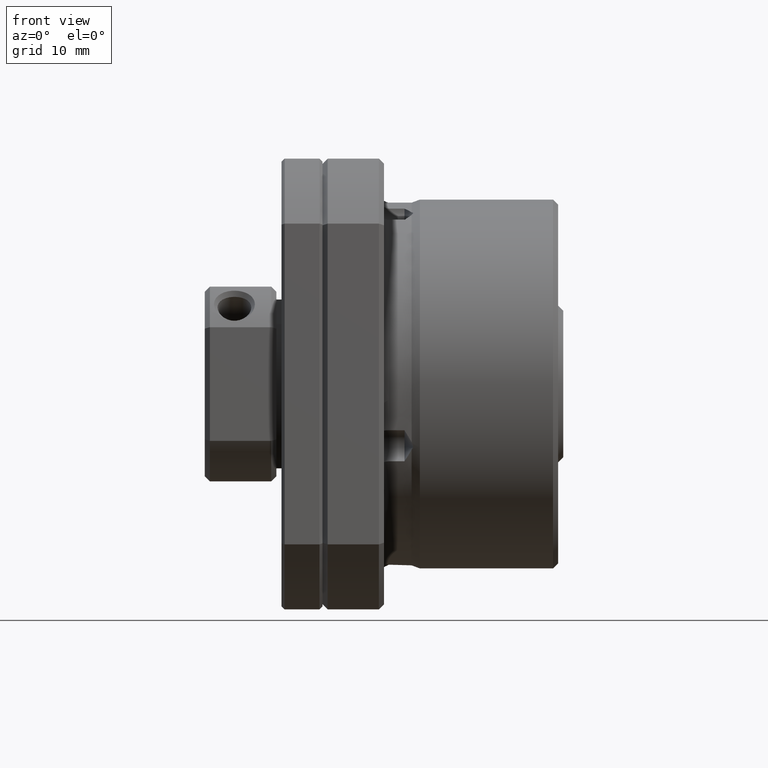
[diagram: clean part render]
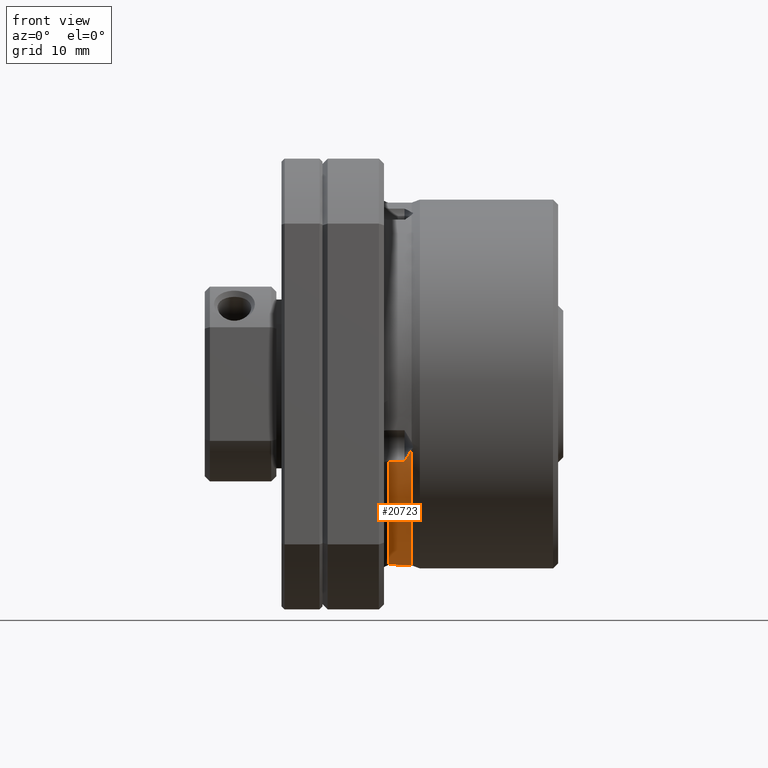
[diagram: same view with one face highlighted and labeled with its STEP entity id]
A machine part, front view. The second image highlights one B-rep face of the part: STEP entity #20723.
In plain terms, the highlighted cylindrical surface (partial cylindrical patch) has radius 17.7 mm, axis along (-1, -0, -0).
Its self-contained STEP definition (entity closure, byte-faithful):
#391 = VERTEX_POINT ( 'NONE', #14386 ) ;
#436 = EDGE_CURVE ( 'NONE', #391, #452, #14480, .T. ) ;
#452 = VERTEX_POINT ( 'NONE', #14495 ) ;
#8760 = CARTESIAN_POINT ( 'NONE',  ( 8.000000000000000000, -16.01412981139533200, -7.539074637100979400 ) ) ;
#8761 = CARTESIAN_POINT ( 'NONE',  ( 8.120802033788658400, -16.10057571867715600, -7.355450512455436600 ) ) ;
#8762 = CARTESIAN_POINT ( 'NONE',  ( 8.241234082147562000, -16.18393367971889800, -7.170216454660001100 ) ) ;
#8763 = CARTESIAN_POINT ( 'NONE',  ( 8.419074907213165200, -16.30478993042077500, -6.888704788558159800 ) ) ;
#8764 = CARTESIAN_POINT ( 'NONE',  ( 8.477912483337027200, -16.34438367873660500, -6.794245050410823200 ) ) ;
#8765 = CARTESIAN_POINT ( 'NONE',  ( 8.592737253384665800, -16.42247372935303000, -6.603256791273008900 ) ) ;
#8766 = CARTESIAN_POINT ( 'NONE',  ( 8.649190266654795100, -16.46089141186192600, -6.506953526237564800 ) ) ;
#8767 = CARTESIAN_POINT ( 'NONE',  ( 8.699999999999999300, -16.49952633265435500, -6.407466800385729600 ) ) ;
#8768 = CARTESIAN_POINT ( 'NONE',  ( 8.699999999999999300, -16.49952633265435500, -6.407466800385729600 ) ) ;
#8769 = B_SPLINE_CURVE_WITH_KNOTS ( 'NONE', 3,
 ( #8767, #8766, #8765, #8764, #8763, #8762, #8761, #8760 ),
 .UNSPECIFIED., .F., .F.,
 ( 4, 2, 2, 4 ),
 ( 4.647671282702426400E-007, 0.0003546252043864472900, 0.0007087856416446243400, 0.001417106516160984200 ),
 .UNSPECIFIED. ) ;
#8770 = CARTESIAN_POINT ( 'NONE',  ( 8.000000000000000000, -16.01412981139533200, -7.539074637100979400 ) ) ;
#8771 = LINE ( 'NONE', #8831, #8830 ) ;
#8772 = CARTESIAN_POINT ( 'NONE',  ( 6.500000000000005300, 4.518417990666042000, -17.11355891863598800 ) ) ;
#8795 = CARTESIAN_POINT ( 'NONE',  ( 8.000000000000000000, 4.518417990666038400, -17.11355891863599200 ) ) ;
#8829 = DIRECTION ( 'NONE',  ( 1.000000000000000000, 0.0000000000000000000, 0.0000000000000000000 ) ) ;
#8830 = VECTOR ( 'NONE', #8829, 1000.000000000000000 ) ;
#8831 = CARTESIAN_POINT ( 'NONE',  ( 3.999999999999999100, 4.518417990666042900, -17.11355891863599200 ) ) ;
#10359 = CARTESIAN_POINT ( 'NONE',  ( 8.699999999999999300, 5.697286755421897600, -16.75801072999102100 ) ) ;
#10360 = CARTESIAN_POINT ( 'NONE',  ( 8.649105457767538100, 5.596072794123046800, -16.79242083811559600 ) ) ;
#10361 = CARTESIAN_POINT ( 'NONE',  ( 8.592630876397089800, 5.497588769951598000, -16.82489697095796900 ) ) ;
#10362 = CARTESIAN_POINT ( 'NONE',  ( 8.477819138101395400, 5.301117562490500900, -16.88782972899429400 ) ) ;
#10363 = CARTESIAN_POINT ( 'NONE',  ( 8.419022206840887500, 5.203375652789222100, -16.91819443136032000 ) ) ;
#10364 = CARTESIAN_POINT ( 'NONE',  ( 8.241243166610017200, 4.910143246852120700, -17.00653337105466200 ) ) ;
#10365 = CARTESIAN_POINT ( 'NONE',  ( 8.120818423907019600, 4.714675213159915200, -17.06174198393932100 ) ) ;
#10366 = CARTESIAN_POINT ( 'NONE',  ( 8.000000000000000000, 4.518417990666038400, -17.11355891863599200 ) ) ;
#10367 = B_SPLINE_CURVE_WITH_KNOTS ( 'NONE', 3,
 ( #10366, #10365, #10364, #10363, #10362, #10361, #10360, #10359 ),
 .UNSPECIFIED., .F., .F.,
 ( 4, 2, 2, 4 ),
 ( 3.907740357526669400E-007, 0.0007085832052107483900, 0.001062679420798246300, 0.001416775636385744100 ),
 .UNSPECIFIED. ) ;
#10398 = DIRECTION ( 'NONE',  ( -1.000000000000000000, -0.0000000000000000000, -0.0000000000000000000 ) ) ;
#10399 = VECTOR ( 'NONE', #10398, 1000.000000000000000 ) ;
#10400 = CARTESIAN_POINT ( 'NONE',  ( 3.999999999999999100, -16.01412981139533200, -7.539074637100975800 ) ) ;
#10401 = LINE ( 'NONE', #10400, #10399 ) ;
#10408 = CARTESIAN_POINT ( 'NONE',  ( 6.500000000000005300, -16.01412981139533500, -7.539074637100976700 ) ) ;
#10409 = DIRECTION ( 'NONE',  ( 0.0000000000000000000, 0.0000000000000000000, 1.000000000000000000 ) ) ;
#10410 = DIRECTION ( 'NONE',  ( -1.000000000000000000, -0.0000000000000000000, -0.0000000000000000000 ) ) ;
#10411 = CARTESIAN_POINT ( 'NONE',  ( 6.500000000000005300, 0.0000000000000000000, 0.0000000000000000000 ) ) ;
#10412 = AXIS2_PLACEMENT_3D ( 'NONE', #10411, #10410, #10409 ) ;
#10413 = CIRCLE ( 'NONE', #10412, 17.69999999999999600 ) ;
#10432 = DIRECTION ( 'NONE',  ( 0.0000000000000000000, 0.0000000000000000000, 1.000000000000000000 ) ) ;
#10433 = DIRECTION ( 'NONE',  ( -1.000000000000000000, -0.0000000000000000000, -0.0000000000000000000 ) ) ;
#10434 = CARTESIAN_POINT ( 'NONE',  ( -94.46891865289678900, 0.0000000000000000000, 0.0000000000000000000 ) ) ;
#10435 = AXIS2_PLACEMENT_3D ( 'NONE', #10434, #10433, #10432 ) ;
#10436 = CYLINDRICAL_SURFACE ( 'NONE', #10435, 17.69999999999999600 ) ;
#10438 = FACE_OUTER_BOUND ( 'NONE', #20705, .T. ) ;
#10456 = DIRECTION ( 'NONE',  ( 0.0000000000000000000, 0.0000000000000000000, 1.000000000000000000 ) ) ;
#10457 = DIRECTION ( 'NONE',  ( -1.000000000000000000, -0.0000000000000000000, -0.0000000000000000000 ) ) ;
#10458 = CARTESIAN_POINT ( 'NONE',  ( 8.699999999999999300, 0.0000000000000000000, 0.0000000000000000000 ) ) ;
#10459 = AXIS2_PLACEMENT_3D ( 'NONE', #10458, #10457, #10456 ) ;
#10468 = CIRCLE ( 'NONE', #10459, 17.69999999999999600 ) ;
#13614 = VERTEX_POINT ( 'NONE', #8770 ) ;
#13616 = EDGE_CURVE ( 'NONE', #13617, #13614, #8769, .T. ) ;
#13617 = VERTEX_POINT ( 'NONE', #8768 ) ;
#13629 = VERTEX_POINT ( 'NONE', #8795 ) ;
#13633 = VERTEX_POINT ( 'NONE', #8772 ) ;
#13635 = EDGE_CURVE ( 'NONE', #13633, #13629, #8771, .T. ) ;
#14386 = CARTESIAN_POINT ( 'NONE',  ( 8.699999999999999300, 5.697286755421897600, -16.75801072999102100 ) ) ;
#14477 = DIRECTION ( 'NONE',  ( 0.0000000000000000000, 0.0000000000000000000, 1.000000000000000000 ) ) ;
#14478 = DIRECTION ( 'NONE',  ( -1.000000000000000000, -0.0000000000000000000, -0.0000000000000000000 ) ) ;
#14479 = AXIS2_PLACEMENT_3D ( 'NONE', #14485, #14478, #14477 ) ;
#14480 = CIRCLE ( 'NONE', #14479, 17.69999999999999600 ) ;
#14485 = CARTESIAN_POINT ( 'NONE',  ( 8.699999999999999300, 0.0000000000000000000, 0.0000000000000000000 ) ) ;
#14495 = CARTESIAN_POINT ( 'NONE',  ( 8.699999999999999300, 0.0000000000000000000, -17.69999999999999600 ) ) ;
#20677 = ORIENTED_EDGE ( 'NONE', *, *, #436, .T. ) ;
#20686 = EDGE_CURVE ( 'NONE', #13629, #391, #10367, .T. ) ;
#20687 = ORIENTED_EDGE ( 'NONE', *, *, #13635, .T. ) ;
#20689 = ORIENTED_EDGE ( 'NONE', *, *, #20686, .T. ) ;
#20691 = ORIENTED_EDGE ( 'NONE', *, *, #20693, .F. ) ;
#20693 = EDGE_CURVE ( 'NONE', #13633, #20695, #10413, .T. ) ;
#20695 = VERTEX_POINT ( 'NONE', #10408 ) ;
#20702 = ORIENTED_EDGE ( 'NONE', *, *, #20706, .T. ) ;
#20704 = ORIENTED_EDGE ( 'NONE', *, *, #13616, .T. ) ;
#20705 = EDGE_LOOP ( 'NONE', ( #20704, #20702, #20691, #20687, #20689, #20677, #20731 ) ) ;
#20706 = EDGE_CURVE ( 'NONE', #13614, #20695, #10401, .T. ) ;
#20723 = ADVANCED_FACE ( 'NONE', ( #10438 ), #10436, .T. ) ;
#20731 = ORIENTED_EDGE ( 'NONE', *, *, #20738, .T. ) ;
#20738 = EDGE_CURVE ( 'NONE', #452, #13617, #10468, .T. ) ;